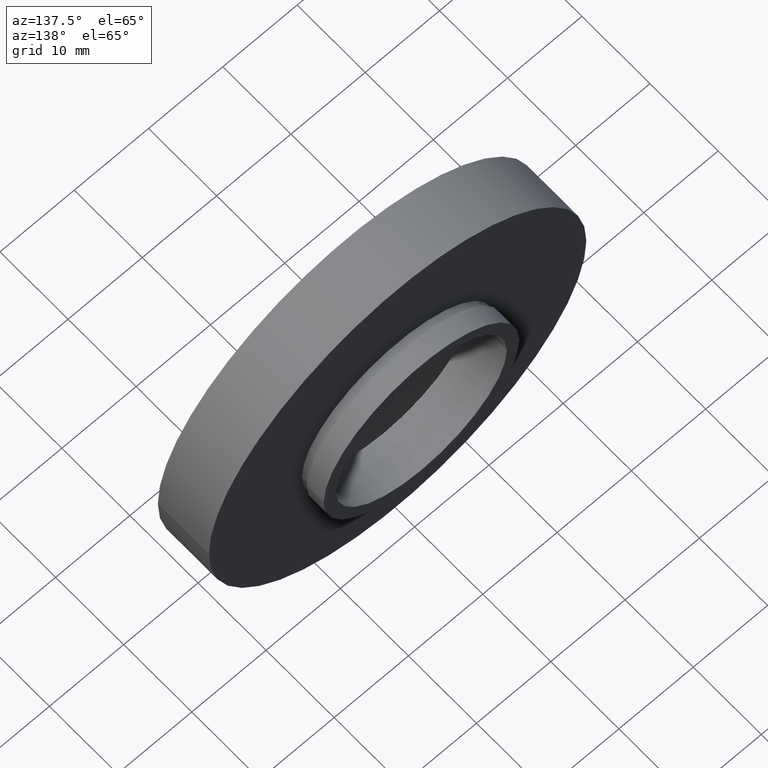
[diagram: clean part render]
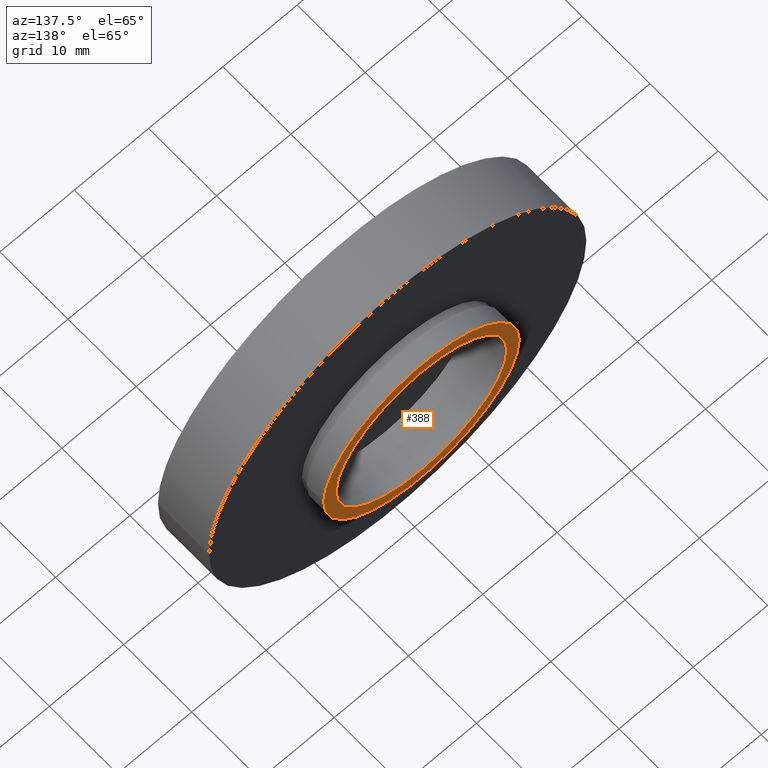
[diagram: same view with one face highlighted and labeled with its STEP entity id]
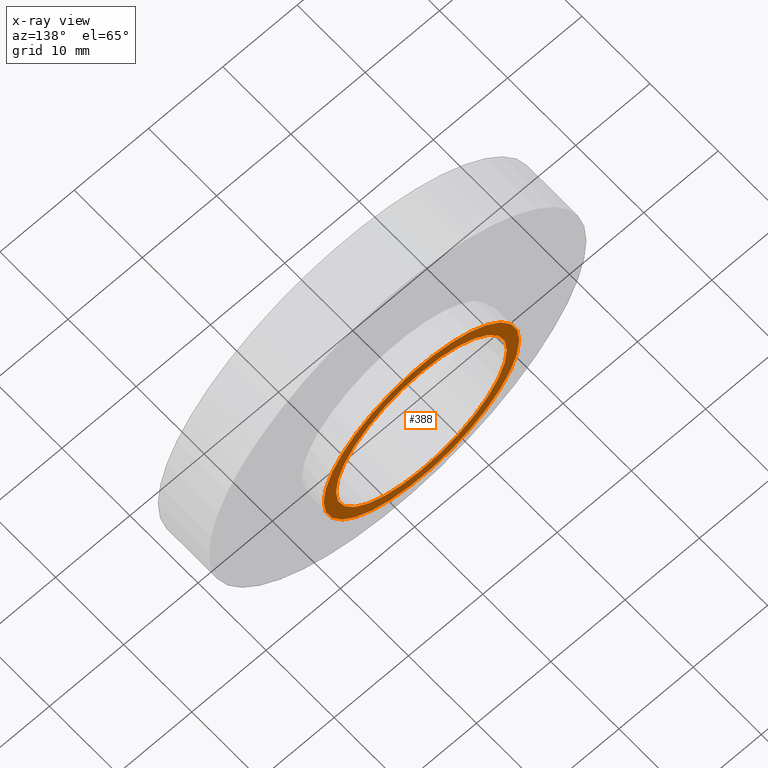
[diagram: x-ray of the same camera — body ghosted, the highlighted face saturated]
A machine part, auxiliary view. The second image highlights one B-rep face of the part: STEP entity #388.
The next image is the same camera in x-ray: the body ghosted, the highlighted face saturated — about 0% of this face is hidden behind the body in this view.
In plain terms, the highlighted planar face has unit normal (0, -1, 0).
Its self-contained STEP definition (entity closure, byte-faithful):
#19 = PLANE ( 'NONE',  #502 ) ;
#22 = AXIS2_PLACEMENT_3D ( 'NONE', #569, #221, #613 ) ;
#33 = DIRECTION ( 'NONE',  ( -1.000000000000000000, -1.318178933113075200E-016, 0.0000000000000000000 ) ) ;
#35 = VERTEX_POINT ( 'NONE', #273 ) ;
#61 = ORIENTED_EDGE ( 'NONE', *, *, #117, .T. ) ;
#62 = DIRECTION ( 'NONE',  ( 1.224646799147351000E-016, -1.000000000000000000, 0.0000000000000000000 ) ) ;
#67 = AXIS2_PLACEMENT_3D ( 'NONE', #587, #241, #296 ) ;
#76 = EDGE_CURVE ( 'NONE', #467, #35, #193, .T. ) ;
#100 = VERTEX_POINT ( 'NONE', #134 ) ;
#117 = EDGE_CURVE ( 'NONE', #158, #100, #154, .T. ) ;
#123 = ORIENTED_EDGE ( 'NONE', *, *, #431, .T. ) ;
#126 = CIRCLE ( 'NONE', #67, 11.50000000000000200 ) ;
#134 = CARTESIAN_POINT ( 'NONE',  ( 13.16000000000000200, 10.99999999999999800, 1.611635187677917100E-015 ) ) ;
#154 = CIRCLE ( 'NONE', #299, 13.16000000000000000 ) ;
#158 = VERTEX_POINT ( 'NONE', #610 ) ;
#162 = ORIENTED_EDGE ( 'NONE', *, *, #354, .F. ) ;
#193 = CIRCLE ( 'NONE', #22, 11.50000000000000200 ) ;
#196 = ORIENTED_EDGE ( 'NONE', *, *, #76, .F. ) ;
#221 = DIRECTION ( 'NONE',  ( -1.224646799147351000E-016, 1.000000000000000000, -0.0000000000000000000 ) ) ;
#235 = DIRECTION ( 'NONE',  ( -1.224646799147351000E-016, 1.000000000000000000, -0.0000000000000000000 ) ) ;
#241 = DIRECTION ( 'NONE',  ( -1.224646799147351000E-016, 1.000000000000000000, -0.0000000000000000000 ) ) ;
#273 = CARTESIAN_POINT ( 'NONE',  ( -11.50000000000000200, 10.99999999999999500, 0.0000000000000000000 ) ) ;
#296 = DIRECTION ( 'NONE',  ( -1.000000000000000000, -1.508455196501571200E-016, 0.0000000000000000000 ) ) ;
#299 = AXIS2_PLACEMENT_3D ( 'NONE', #323, #563, #522 ) ;
#323 = CARTESIAN_POINT ( 'NONE',  ( 7.208293393765502500E-016, 10.99999999999999600, 0.0000000000000000000 ) ) ;
#345 = DIRECTION ( 'NONE',  ( 1.000000000000000000, 1.224646799147351000E-016, 0.0000000000000000000 ) ) ;
#350 = CIRCLE ( 'NONE', #397, 13.16000000000000000 ) ;
#354 = EDGE_CURVE ( 'NONE', #35, #467, #126, .T. ) ;
#359 = CARTESIAN_POINT ( 'NONE',  ( 11.50000000000000200, 10.99999999999999800, 1.408343819019456600E-015 ) ) ;
#386 = EDGE_LOOP ( 'NONE', ( #162, #196 ) ) ;
#388 = ADVANCED_FACE ( 'NONE', ( #552, #567 ), #19, .F. ) ;
#390 = CARTESIAN_POINT ( 'NONE',  ( 11.50000000000000200, 10.99999999999999800, 0.0000000000000000000 ) ) ;
#397 = AXIS2_PLACEMENT_3D ( 'NONE', #510, #235, #33 ) ;
#431 = EDGE_CURVE ( 'NONE', #100, #158, #350, .T. ) ;
#467 = VERTEX_POINT ( 'NONE', #359 ) ;
#502 = AXIS2_PLACEMENT_3D ( 'NONE', #390, #62, #345 ) ;
#510 = CARTESIAN_POINT ( 'NONE',  ( 7.208293393765502500E-016, 10.99999999999999600, 0.0000000000000000000 ) ) ;
#522 = DIRECTION ( 'NONE',  ( -1.000000000000000000, -1.318178933113075200E-016, 0.0000000000000000000 ) ) ;
#552 = FACE_BOUND ( 'NONE', #386, .T. ) ;
#563 = DIRECTION ( 'NONE',  ( -1.224646799147351000E-016, 1.000000000000000000, -0.0000000000000000000 ) ) ;
#567 = FACE_OUTER_BOUND ( 'NONE', #608, .T. ) ;
#569 = CARTESIAN_POINT ( 'NONE',  ( 7.208293393765502500E-016, 10.99999999999999600, 0.0000000000000000000 ) ) ;
#587 = CARTESIAN_POINT ( 'NONE',  ( 7.208293393765502500E-016, 10.99999999999999600, 0.0000000000000000000 ) ) ;
#608 = EDGE_LOOP ( 'NONE', ( #61, #123 ) ) ;
#610 = CARTESIAN_POINT ( 'NONE',  ( -13.16000000000000000, 10.99999999999999500, 0.0000000000000000000 ) ) ;
#613 = DIRECTION ( 'NONE',  ( -1.000000000000000000, -1.508455196501571200E-016, 0.0000000000000000000 ) ) ;